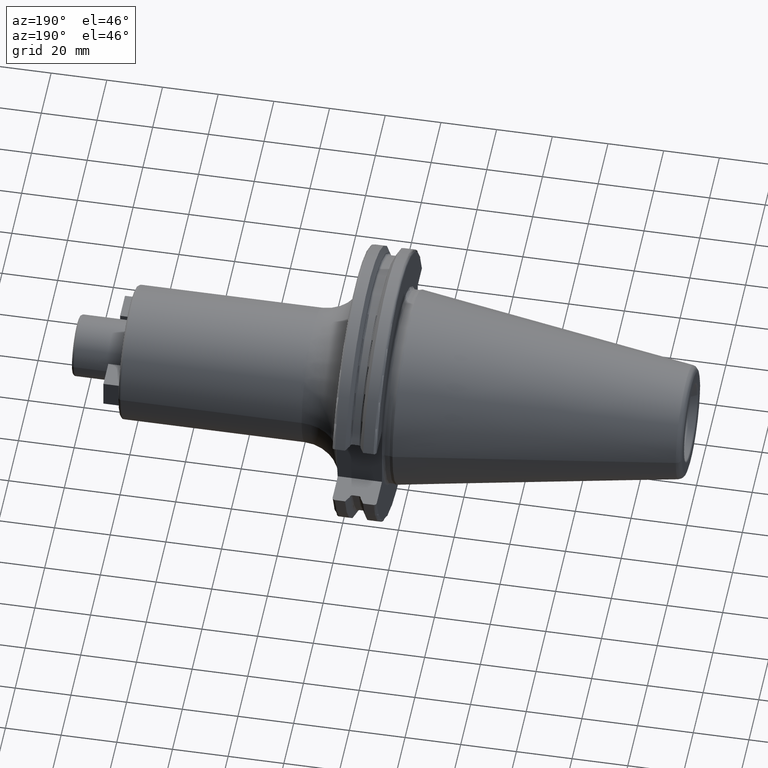
[diagram: clean part render]
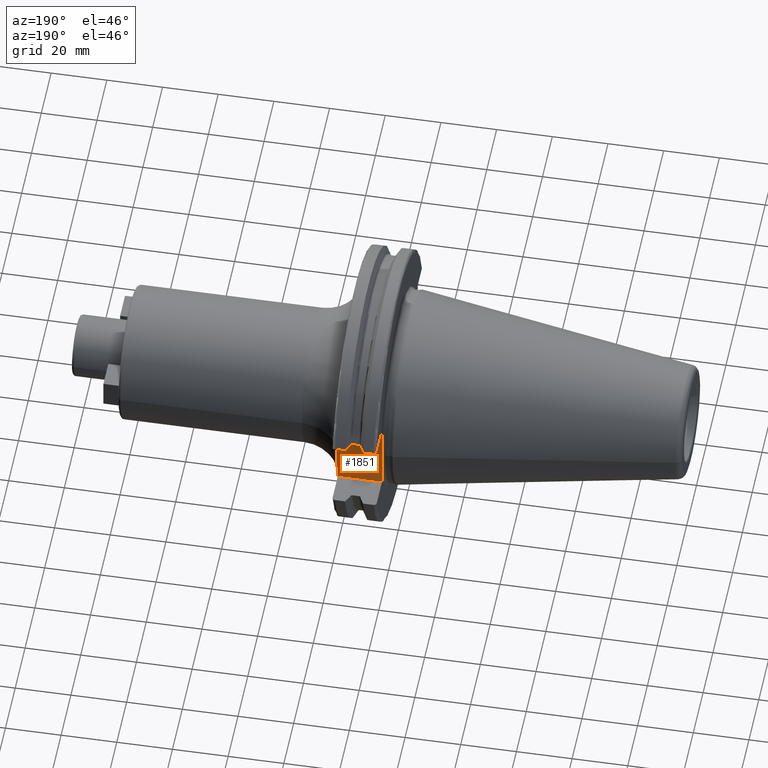
[diagram: same view with one face highlighted and labeled with its STEP entity id]
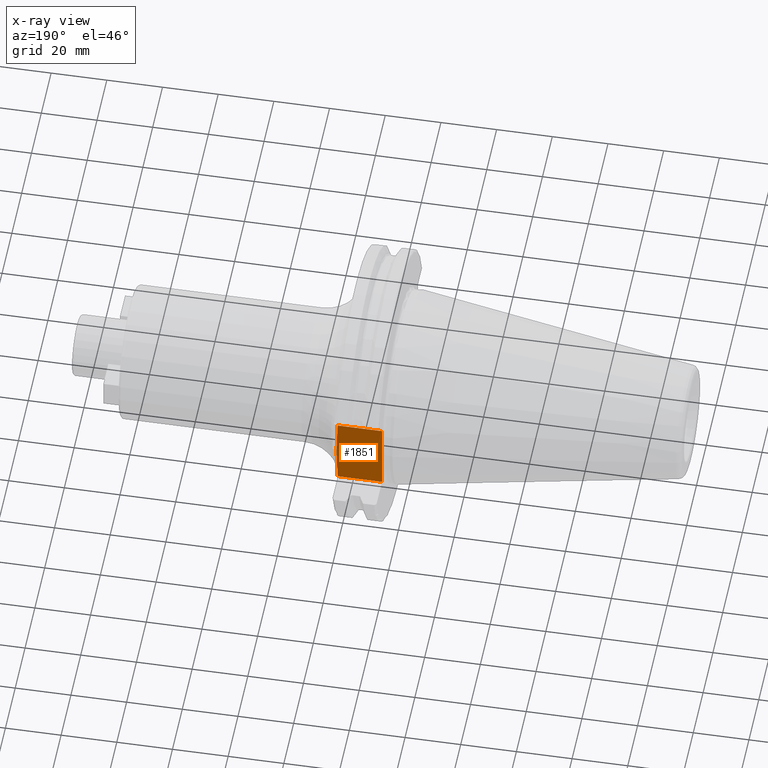
[diagram: x-ray of the same camera — body ghosted, the highlighted face saturated]
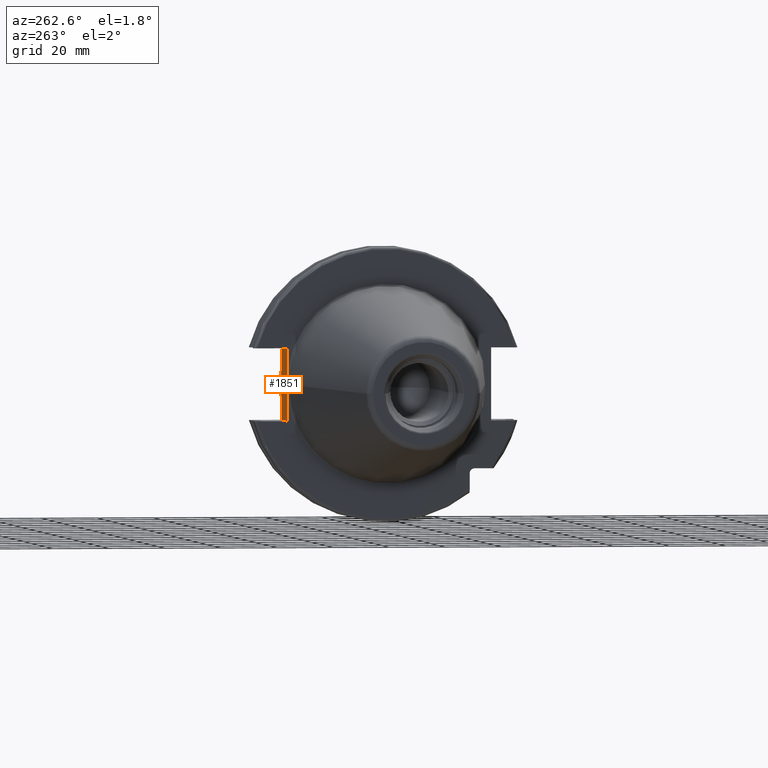
[diagram: same view with one face highlighted and labeled with its STEP entity id]
A machine part, auxiliary view. The second image highlights one B-rep face of the part: STEP entity #1851.
The next image is the same camera in x-ray: the body ghosted, the highlighted face saturated — about 0% of this face is hidden behind the body in this view.
A second angle (auxiliary view) of the same face is appended — the face is thin or edge-on in the first view.
In plain terms, the highlighted planar face has unit normal (0, -1, 0).
Its self-contained STEP definition (entity closure, byte-faithful):
#96=CARTESIAN_POINT('',(3.161444226151E0,3.53E1,1.136082451233E-13));
#97=CARTESIAN_POINT('',(3.161444226151E0,3.53E1,-2.287557745853E-1));
#98=CARTESIAN_POINT('',(3.162734010751E0,3.53E1,-6.792530123044E-1));
#99=CARTESIAN_POINT('',(3.167877030309E0,3.53E1,-1.331895850106E0));
#100=CARTESIAN_POINT('',(3.175250793624E0,3.53E1,-1.967616454588E0));
#101=CARTESIAN_POINT('',(3.183670148061E0,3.53E1,-2.589717830169E0));
#102=CARTESIAN_POINT('',(3.191796133338E0,3.53E1,-3.202378106077E0));
#103=CARTESIAN_POINT('',(3.198127290791E0,3.53E1,-3.809054455619E0));
#104=CARTESIAN_POINT('',(3.2E0,3.53E1,-4.213157466434E0));
#105=CARTESIAN_POINT('',(3.2E0,3.53E1,-4.414818795828E0));
#122=DIRECTION('',(1.E0,0.E0,0.E0));
#123=VECTOR('',#122,1.591705676088E1);
#124=CARTESIAN_POINT('',(3.2E0,3.53E1,-1.29E1));
#125=LINE('',#124,#123);
#180=CARTESIAN_POINT('',(1.911705676088E1,3.53E1,-1.29E1));
#181=CARTESIAN_POINT('',(1.915287632508E1,3.53E1,-1.180004673514E1));
#182=CARTESIAN_POINT('',(1.924080132576E1,3.53E1,-9.706489187843E0));
#183=CARTESIAN_POINT('',(1.936533881060E1,3.53E1,-6.849616527362E0));
#184=CARTESIAN_POINT('',(1.945236485799E1,3.53E1,-4.375984486619E0));
#185=CARTESIAN_POINT('',(1.950265728659E1,3.53E1,-2.137867689811E0));
#186=CARTESIAN_POINT('',(1.951348385736E1,3.53E1,-6.993248672892E-1));
#187=CARTESIAN_POINT('',(1.951349421474E1,3.53E1,-2.060085826012E-3));
#205=CARTESIAN_POINT('',(1.951349421474E1,3.53E1,-2.060085826012E-3));
#206=CARTESIAN_POINT('',(1.951350451918E1,3.53E1,6.916402714816E-1));
#207=CARTESIAN_POINT('',(1.950283899636E1,3.53E1,2.125680634255E0));
#208=CARTESIAN_POINT('',(1.945264997934E1,3.53E1,4.367347023302E0));
#209=CARTESIAN_POINT('',(1.936543576829E1,3.53E1,6.847560399361E0));
#210=CARTESIAN_POINT('',(1.924078954813E1,3.53E1,9.706666873772E0));
#211=CARTESIAN_POINT('',(1.915286443868E1,3.53E1,1.180041174459E1));
#212=CARTESIAN_POINT('',(1.911705676088E1,3.53E1,1.29E1));
#226=DIRECTION('',(1.E0,0.E0,0.E0));
#227=VECTOR('',#226,1.591705676088E1);
#228=CARTESIAN_POINT('',(3.2E0,3.53E1,1.29E1));
#229=LINE('',#228,#227);
#514=DIRECTION('',(0.E0,0.E0,-1.E0));
#515=VECTOR('',#514,8.485181204172E0);
#516=CARTESIAN_POINT('',(3.2E0,3.53E1,-4.414818795828E0));
#517=LINE('',#516,#515);
#518=DIRECTION('',(0.E0,0.E0,-1.E0));
#519=VECTOR('',#518,8.485181204172E0);
#520=CARTESIAN_POINT('',(3.2E0,3.53E1,1.29E1));
#521=LINE('',#520,#519);
#934=CARTESIAN_POINT('',(3.2E0,3.53E1,4.414818795828E0));
#935=CARTESIAN_POINT('',(3.2E0,3.53E1,4.213098987331E0));
#936=CARTESIAN_POINT('',(3.198126239348E0,3.53E1,3.808889642023E0));
#937=CARTESIAN_POINT('',(3.191792541487E0,3.53E1,3.202078124088E0));
#938=CARTESIAN_POINT('',(3.183664786024E0,3.53E1,2.589329618622E0));
#939=CARTESIAN_POINT('',(3.175245424270E0,3.53E1,1.967199873297E0));
#940=CARTESIAN_POINT('',(3.167873523896E0,3.53E1,1.331533559003E0));
#941=CARTESIAN_POINT('',(3.162733016852E0,3.53E1,6.790196322901E-1));
#942=CARTESIAN_POINT('',(3.161444226151E0,3.53E1,2.286685292050E-1));
#943=CARTESIAN_POINT('',(3.161444226151E0,3.53E1,1.136082451233E-13));
#1523=CARTESIAN_POINT('',(3.2E0,3.53E1,1.29E1));
#1525=VERTEX_POINT('',#1523);
#1526=CARTESIAN_POINT('',(3.2E0,3.53E1,4.414818795828E0));
#1527=VERTEX_POINT('',#1526);
#1528=CARTESIAN_POINT('',(3.2E0,3.53E1,-4.414818795828E0));
#1529=CARTESIAN_POINT('',(3.2E0,3.53E1,-1.29E1));
#1530=VERTEX_POINT('',#1528);
#1531=VERTEX_POINT('',#1529);
#1550=VERTEX_POINT('',#943);
#1678=VERTEX_POINT('',#205);
#1679=VERTEX_POINT('',#212);
#1680=VERTEX_POINT('',#180);
#1829=CARTESIAN_POINT('',(1.905E1,3.53E1,1.29E1));
#1830=DIRECTION('',(0.E0,-1.E0,0.E0));
#1831=DIRECTION('',(0.E0,0.E0,-1.E0));
#1832=AXIS2_PLACEMENT_3D('',#1829,#1830,#1831);
#1833=PLANE('',#1832);
#1835=ORIENTED_EDGE('',*,*,#1834,.T.);
#1837=ORIENTED_EDGE('',*,*,#1836,.T.);
#1839=ORIENTED_EDGE('',*,*,#1838,.T.);
#1841=ORIENTED_EDGE('',*,*,#1840,.F.);
#1843=ORIENTED_EDGE('',*,*,#1842,.T.);
#1845=ORIENTED_EDGE('',*,*,#1844,.T.);
#1846=ORIENTED_EDGE('',*,*,#1817,.T.);
#1848=ORIENTED_EDGE('',*,*,#1847,.T.);
#1849=EDGE_LOOP('',(#1835,#1837,#1839,#1841,#1843,#1845,#1846,#1848));
#1850=FACE_OUTER_BOUND('',#1849,.F.);
#1851=ADVANCED_FACE('',(#1850),#1833,.F.);
#106=B_SPLINE_CURVE_WITH_KNOTS('',3,(#96,#97,#98,#99,#100,#101,#102,#103,#104,
#105),.UNSPECIFIED.,.F.,.F.,(4,1,1,1,1,1,1,4),(0.E0,1.428571428571E-1,
2.857142857143E-1,4.285714285714E-1,5.714285714286E-1,7.142857142857E-1,
8.571428571429E-1,1.E0),.UNSPECIFIED.);
#188=B_SPLINE_CURVE_WITH_KNOTS('',3,(#180,#181,#182,#183,#184,#185,#186,#187),
.UNSPECIFIED.,.F.,.F.,(4,1,1,1,1,4),(0.E0,2.E-1,4.E-1,6.E-1,8.E-1,1.E0),
.UNSPECIFIED.);
#213=B_SPLINE_CURVE_WITH_KNOTS('',3,(#205,#206,#207,#208,#209,#210,#211,#212),
.UNSPECIFIED.,.F.,.F.,(4,1,1,1,1,4),(0.E0,2.E-1,4.E-1,6.E-1,8.E-1,1.E0),
.UNSPECIFIED.);
#944=B_SPLINE_CURVE_WITH_KNOTS('',3,(#934,#935,#936,#937,#938,#939,#940,#941,
#942,#943),.UNSPECIFIED.,.F.,.F.,(4,1,1,1,1,1,1,4),(0.E0,1.428571428571E-1,
2.857142857143E-1,4.285714285714E-1,5.714285714286E-1,7.142857142857E-1,
8.571428571429E-1,1.E0),.UNSPECIFIED.);
#1817=EDGE_CURVE('',#1550,#1530,#106,.T.);
#1834=EDGE_CURVE('',#1531,#1680,#125,.T.);
#1836=EDGE_CURVE('',#1680,#1678,#188,.T.);
#1838=EDGE_CURVE('',#1678,#1679,#213,.T.);
#1840=EDGE_CURVE('',#1525,#1679,#229,.T.);
#1842=EDGE_CURVE('',#1525,#1527,#521,.T.);
#1844=EDGE_CURVE('',#1527,#1550,#944,.T.);
#1847=EDGE_CURVE('',#1530,#1531,#517,.T.);